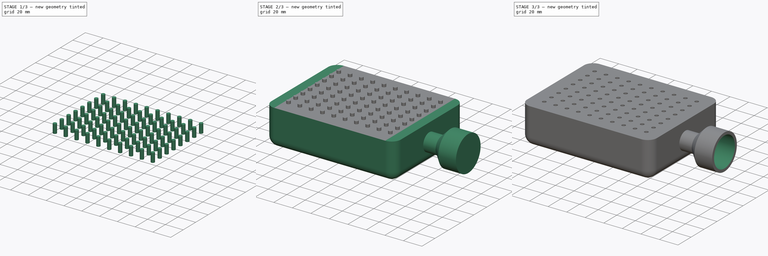
[diagram: build sequence overview — one tinted view per stage of 3, left to right]
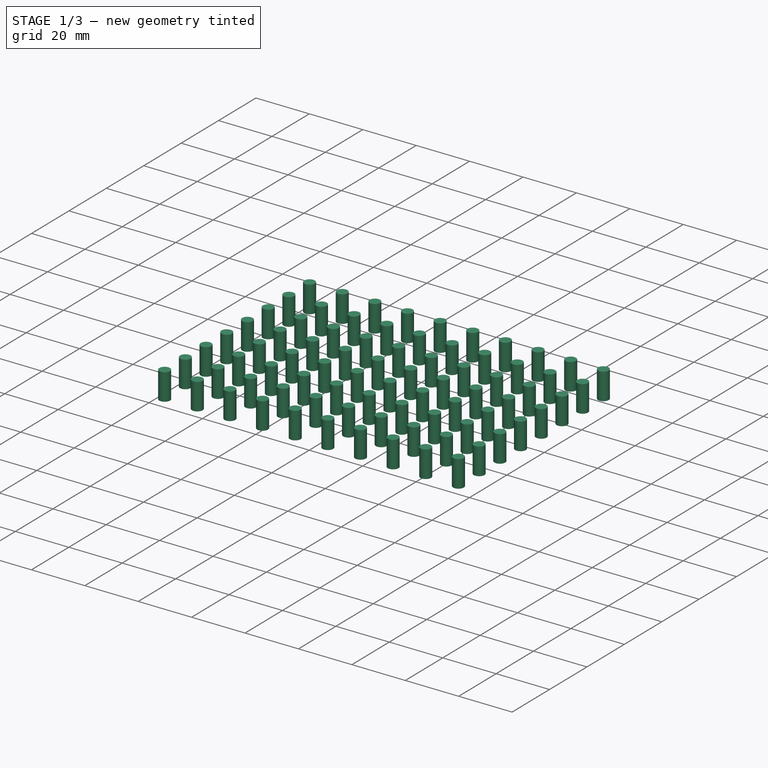
[diagram: stage 1 of 3 — iso view after this stage's code; geometry added in this stage tinted green]
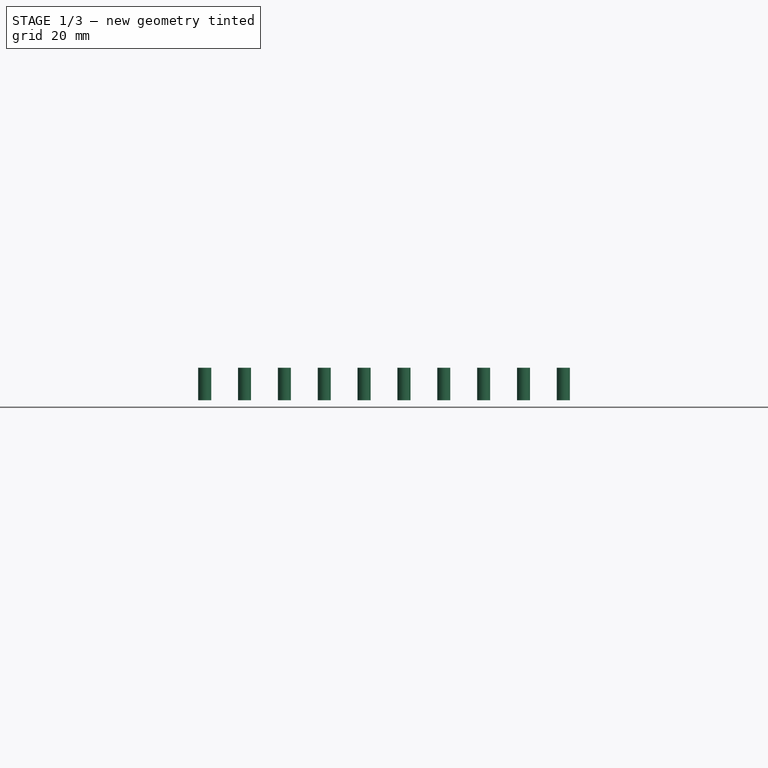
[diagram: stage 1 of 3 — front view after this stage's code; geometry added in this stage tinted green]
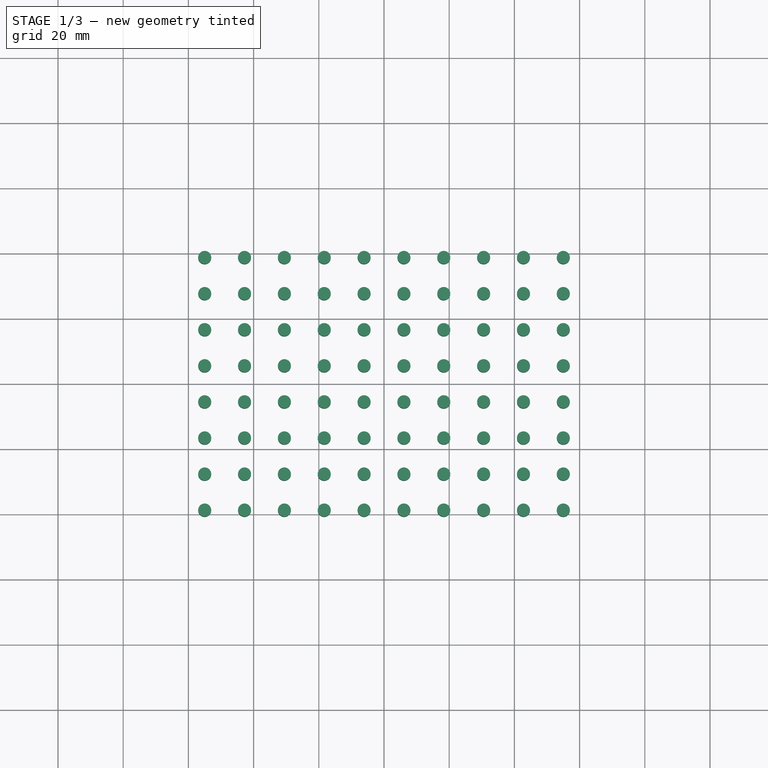
[diagram: stage 1 of 3 — top view after this stage's code; geometry added in this stage tinted green]
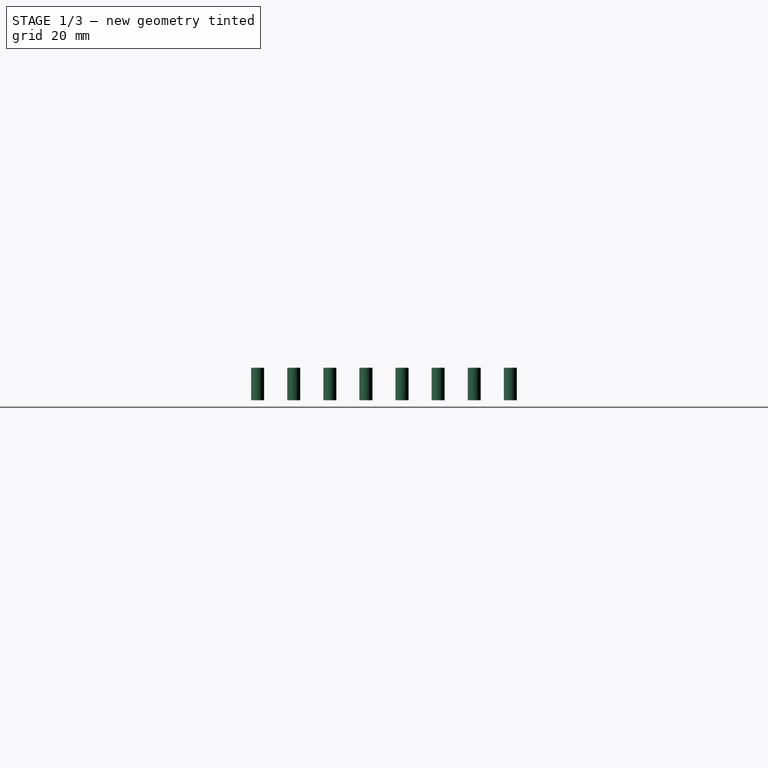
[diagram: stage 1 of 3 — right view after this stage's code; geometry added in this stage tinted green]
FCSTD DOCUMENT  (FreeCAD 0.17R13541 (Git))
Label: Simple Vaccum thermoforming
License: All rights reserved
LicenseURL: http://en.wikipedia.org/wiki/All_rights_reserved
objects: Sketcher::SketchObject×3, PartDesign::Pad×2, PartDesign::Body×2, Spreadsheet::Sheet×1, PartDesign::Line×1, PartDesign::Revolution×1, PartDesign::Fillet×1, PartDesign::Thickness×1, Part::FeaturePython×1, Part::Cut×1, App::Part×1
note: 16 computed .brp shape members not serialized (recipe doc carries the construction recipe); baked Part::Feature solids carry a one-line shape summary decoded from their .brp

FEATURE [PartDesign::Body] Body001
  Group = -> [Sketch,Pad,Sketch001,DatumLine,Revolution,Fillet,Thickness]
  Origin = -> Origin003
  Tip = -> Thickness
FEATURE [Sketcher::SketchObject] Sketch002
  MapMode = 5
  Support = -> [XY_Plane]
  expr: Constraints[8] = Spreadsheet.holesdiam
  expr: Constraints[7] = Spreadsheet.long / 2 - 15
  expr: Constraints[6] = Spreadsheet.width / 2 - 15
  sketch-geometry (3):
    g0: Circle CenterX=-55 CenterY=38.75 CenterZ=0 NormalX=0 NormalY=0 NormalZ=1 AngleXU=0 Radius=2
    g1: LineSegment [constr] StartX=-55 StartY=0 StartZ=0 EndX=-55 EndY=38.75 EndZ=0
    g2: LineSegment [constr] StartX=-55 StartY=38.75 StartZ=0 EndX=0 EndY=38.75 EndZ=0
  constraints (9):
    c: PointOnObject(g1,g-1)
    c: Coincident(g1,g0)
    c: Coincident(g1,g2)
    c: PointOnObject(g2,g-2)
    c: Horizontal(g2)
    c: Vertical(g1)
    c: DistanceY(g1,g1) = 38.75
    c: DistanceX(g2,g2) = 55
    c: Radius(g0) = 2
FEATURE [PartDesign::Pad] Pad001
  Length = 10
  Length2 = 100
  Midplane = true
  Profile = -> Sketch002
  Refine = true
  Type = 0
FEATURE [PartDesign::Body] Body
  Group = -> [Sketch002,Pad001]
  Origin = -> Origin
  Placement = pos=(0,0,38.1) rot=(0,0,1;0rad)
  Tip = -> Pad001
  expr: Placement.Base.z = Spreadsheet.diametro
FEATURE [Part::FeaturePython] Array  # Draft array (typed FeaturePython)
  Angle = 360
  ArrayType = 0
  Axis = (0,0,1)
  Base = -> Body
  Center = (0,0,0)
  Fuse = false
  IntervalAxis = (0,0,0)
  IntervalX = (12.2222,0,0)
  IntervalY = (0,-11.0714,0)
  IntervalZ = (0,0,0)
  NumberPolar = 1
  NumberX = 10
  NumberY = 8
  NumberZ = 1
  expr: IntervalX.y = 0
  expr: IntervalX.x = (Spreadsheet.long - 30) / (Spreadsheet.holesx - 1)
  expr: NumberY = Spreadsheet.holesy
  expr: IntervalY.y = -(Spreadsheet.width - 30) / (Spreadsheet.holesy - 1)
  expr: NumberX = Spreadsheet.holesx
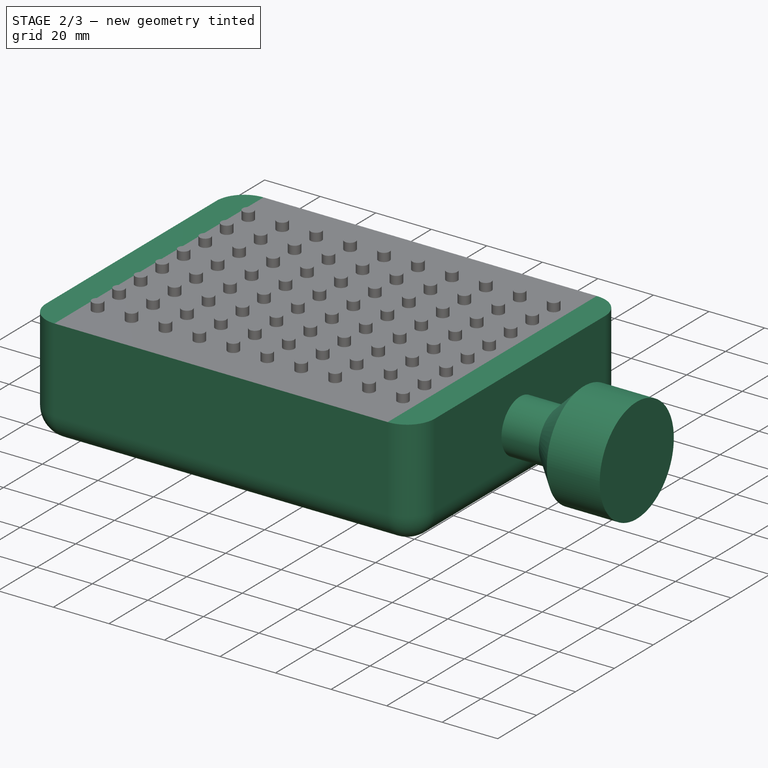
[diagram: stage 2 of 3 — iso view after this stage's code; geometry added in this stage tinted green]
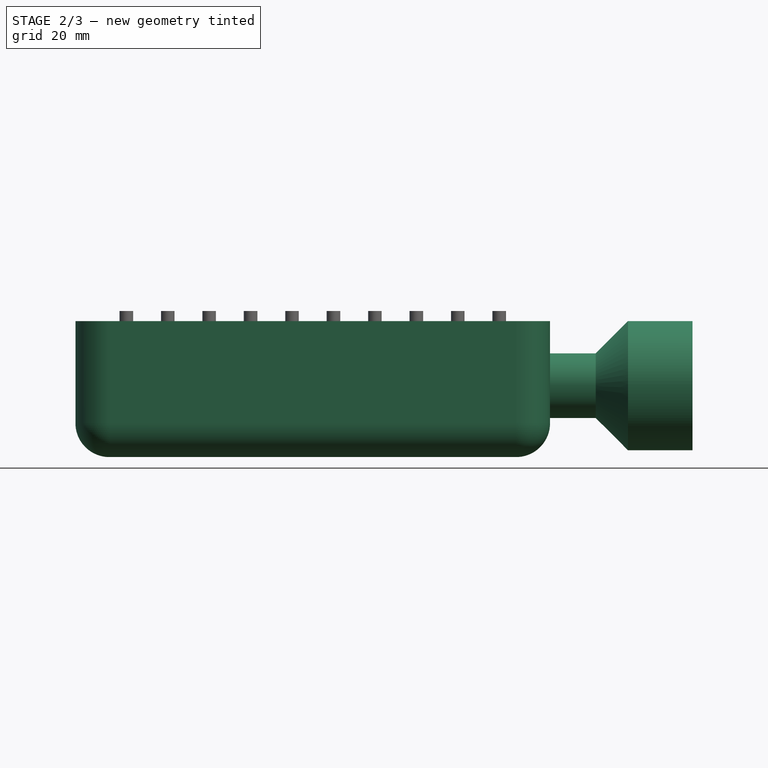
[diagram: stage 2 of 3 — front view after this stage's code; geometry added in this stage tinted green]
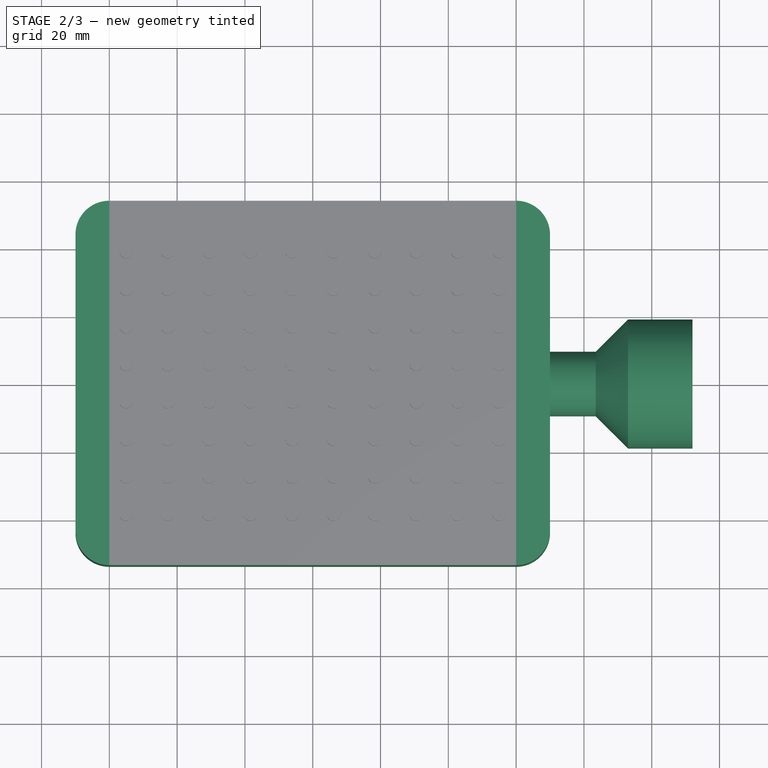
[diagram: stage 2 of 3 — top view after this stage's code; geometry added in this stage tinted green]
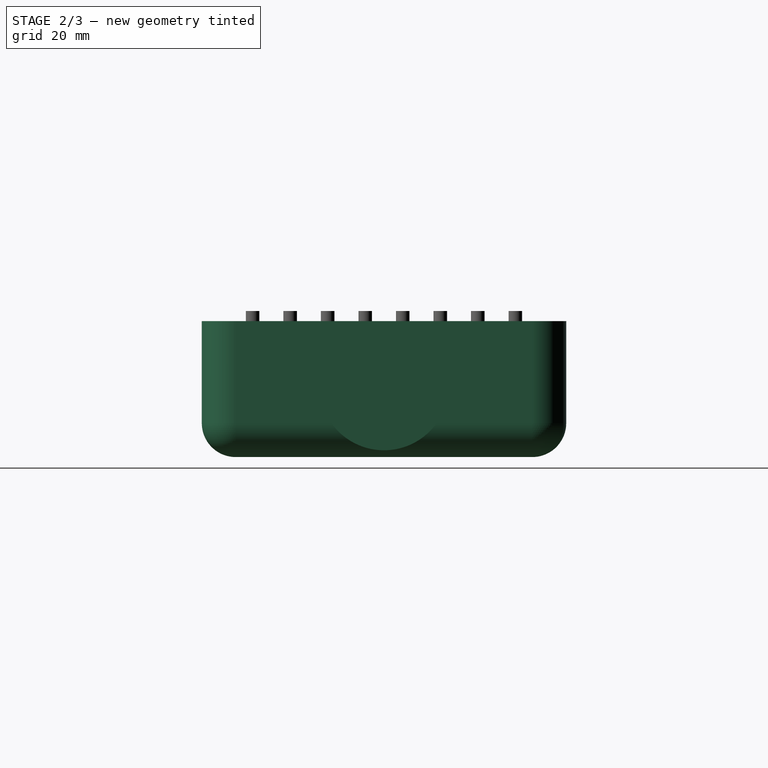
[diagram: stage 2 of 3 — right view after this stage's code; geometry added in this stage tinted green]
FEATURE [Spreadsheet::Sheet] Spreadsheet
  cells = A3=Forming area; D3=holes; A4=Long; B4(long)==280 / 2; D4(holesx)=10; A5=Width; B5(width)==215 / 2; D5(holesy)=8; A7=house diameter; B7(diametro)=38.100000000000001; C7=diameter; D7(holesdiam)=2
FEATURE [Sketcher::SketchObject] Sketch
  MapMode = 5
  Support = -> [XY_Plane003]
  expr: Constraints[10] = Spreadsheet.long
  expr: Constraints[9] = Spreadsheet.width
  sketch-geometry (4):
    g0: LineSegment StartX=-70 StartY=53.75 StartZ=0 EndX=70 EndY=53.75 EndZ=0
    g1: LineSegment StartX=70 StartY=53.75 StartZ=0 EndX=70 EndY=-53.75 EndZ=0
    g2: LineSegment StartX=70 StartY=-53.75 StartZ=0 EndX=-70 EndY=-53.75 EndZ=0
    g3: LineSegment StartX=-70 StartY=-53.75 StartZ=0 EndX=-70 EndY=53.75 EndZ=0
  constraints (11):
    c: Coincident(g0,g1)
    c: Coincident(g1,g2)
    c: Coincident(g2,g3)
    c: Coincident(g3,g0)
    c: Horizontal(g0)
    c: Horizontal(g2)
    c: Vertical(g1)
    c: Vertical(g3)
    c: Symmetric(g1,g0,g-1)
    c: DistanceY(g3,g3) = 107.5
    c: DistanceX(g0,g0) = 140
FEATURE [PartDesign::Pad] Pad
  Length = 40.1
  Length2 = 100
  Profile = -> Sketch
  Refine = true
  Type = 0
  expr: Length = Spreadsheet.diametro + 2
FEATURE [Sketcher::SketchObject] Sketch001
  ExternalGeometry = -> [Pad]
  MapMode = 5
  Placement = pos=(0,0,0) rot=(1,0,0;1.5708rad)
  Support = -> [XZ_Plane003]
  expr: Constraints[17] = Spreadsheet.diametro / 4
  expr: Constraints[16] = Spreadsheet.diametro / 2 + 2
  expr: Constraints[11] = Spreadsheet.diametro / 2
  sketch-geometry (6):
    g0: LineSegment StartX=70 StartY=30.575 StartZ=0 EndX=70 EndY=21.05 EndZ=0
    g1: LineSegment StartX=70 StartY=21.05 StartZ=0 EndX=112.045 EndY=21.05 EndZ=0
    g2: LineSegment StartX=112.045 StartY=21.05 StartZ=0 EndX=112.045 EndY=40.1 EndZ=0
    g3: LineSegment StartX=112.045 StartY=40.1 StartZ=0 EndX=92.9954 EndY=40.1 EndZ=0
    g4: LineSegment StartX=92.9954 StartY=40.1 StartZ=0 EndX=83.4704 EndY=30.575 EndZ=0
    g5: LineSegment StartX=83.4704 StartY=30.575 StartZ=0 EndX=70 EndY=30.575 EndZ=0
  constraints (18):
    c: Vertical(g0)
    c: Coincident(g0,g1)
    c: Horizontal(g1)
    c: Coincident(g1,g2)
    c: Vertical(g2)
    c: Coincident(g2,g3)
    c: Horizontal(g3)
    c: Coincident(g3,g4)
    c: Coincident(g4,g5)
    c: Coincident(g5,g0)
    c: Horizontal(g5)
    c: DistanceY(g2,g2) = 19.05
    c: Equal(g3,g2)
    c: Equal(g4,g5)
    c: PointOnObject(g0,g-3)
    c: Angle(g4,g5) = 2.35619
    c: DistanceY(g-3,g0) = 21.05
    c: DistanceY(g0,g0) = 9.525
FEATURE [PartDesign::Line] DatumLine
  AttacherType = Attacher::AttachEngineLine
  MapMode = 29
  Placement = pos=(0,-2e-12,21.05) rot=(0.57735,0.57735,0.57735;2.0944rad)
  Support = -> [Sketch001]
FEATURE [PartDesign::Revolution] Revolution
  Angle = 360
  Axis = (1,0,0)
  Base = (0,-2e-12,21.05)
  BaseFeature = -> Pad
  Profile = -> Sketch001
  ReferenceAxis = -> DatumLine
  Refine = true
  Reversed = true
FEATURE [PartDesign::Fillet] Fillet
  Base = -> Revolution [Face4,Edge1,Edge2,Edge5,Edge10]
  BaseFeature = -> Revolution
  Radius = 10
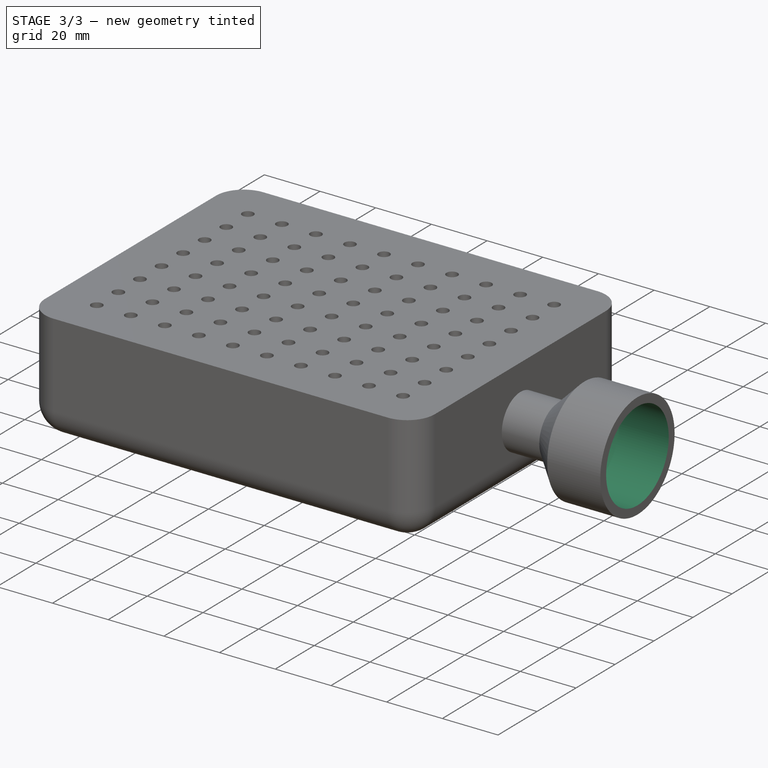
[diagram: stage 3 of 3 — iso view after this stage's code; geometry added in this stage tinted green]
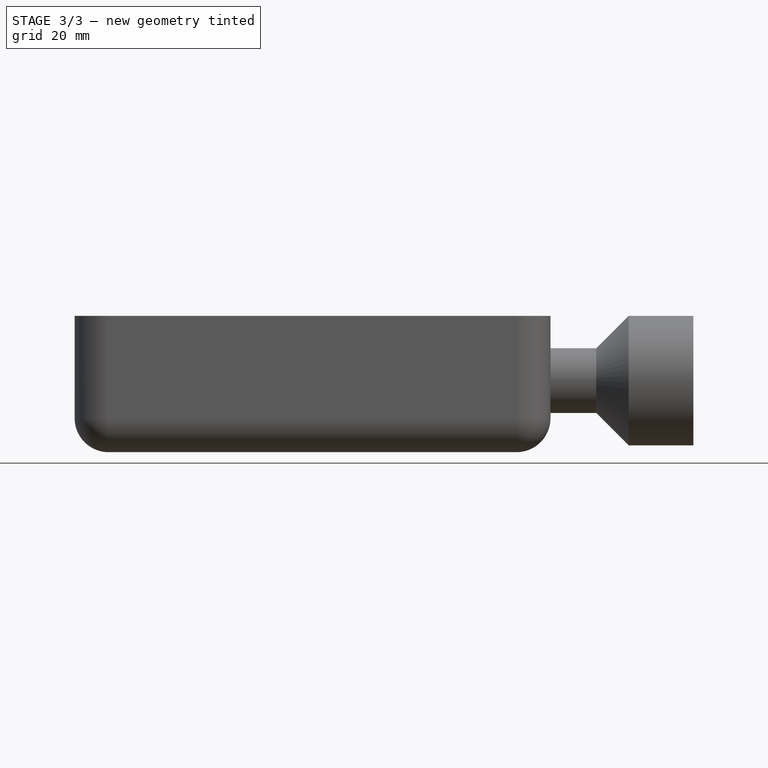
[diagram: stage 3 of 3 — front view after this stage's code; geometry added in this stage tinted green]
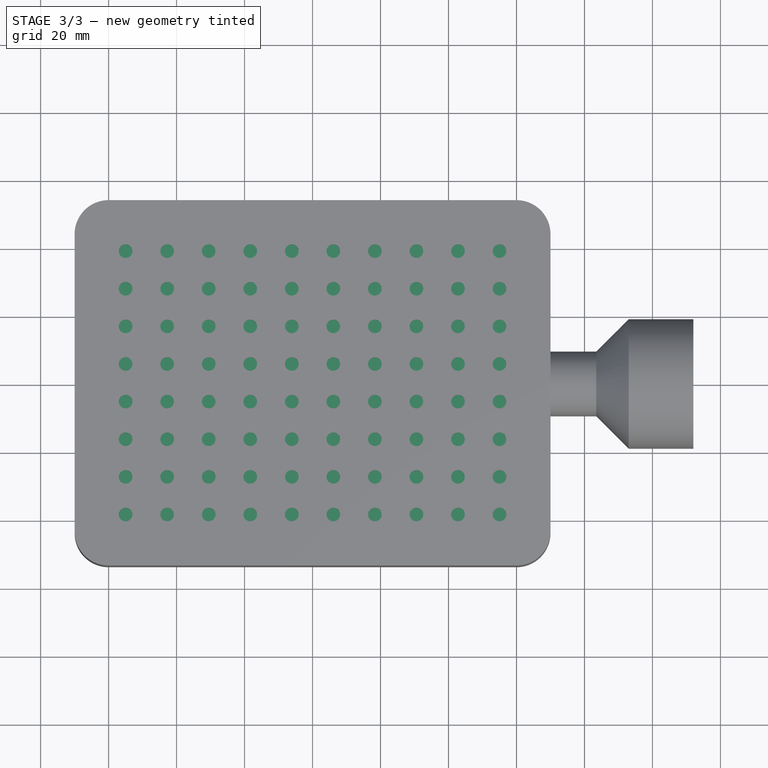
[diagram: stage 3 of 3 — top view after this stage's code; geometry added in this stage tinted green]
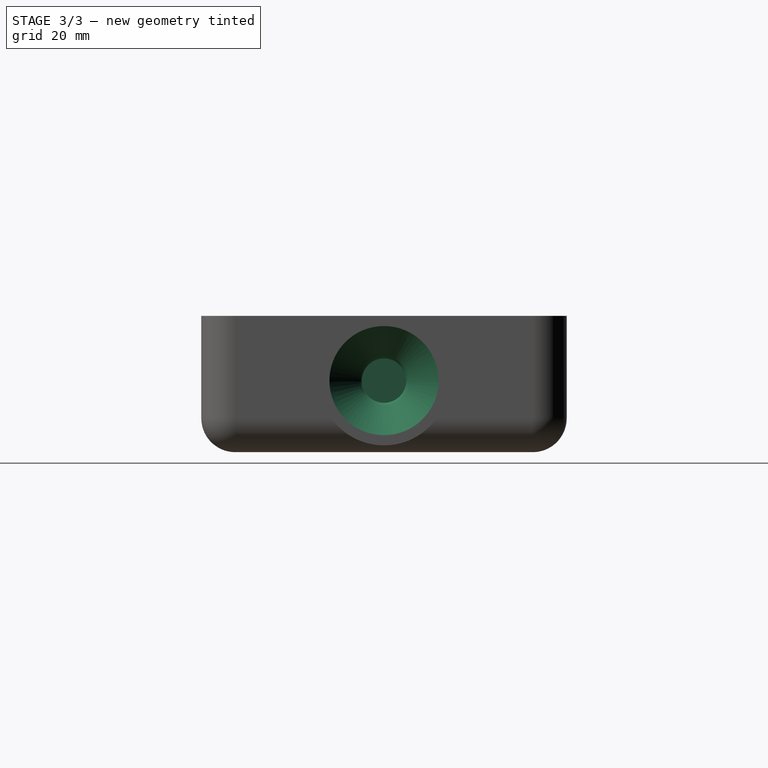
[diagram: stage 3 of 3 — right view after this stage's code; geometry added in this stage tinted green]
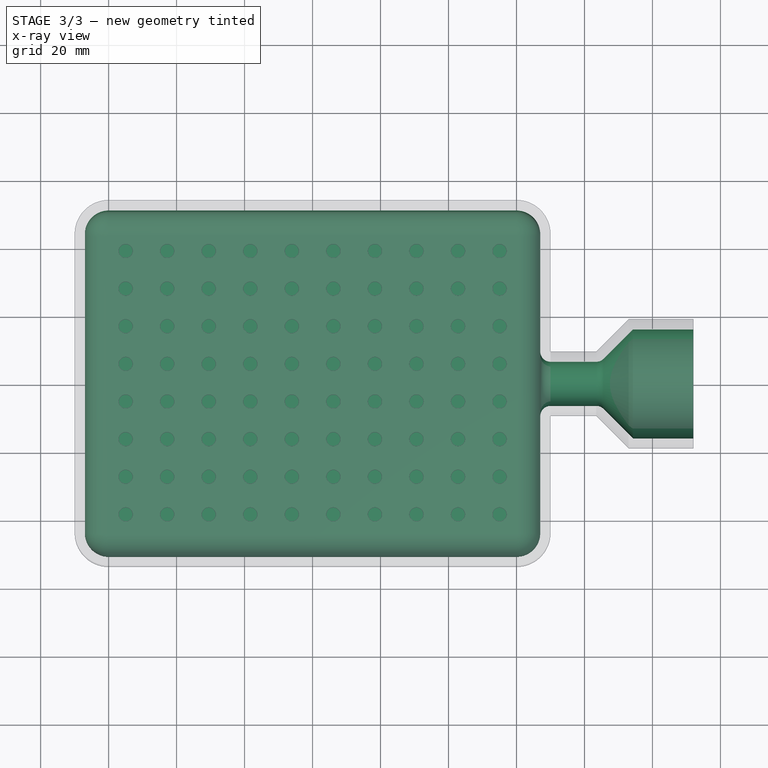
[diagram: stage 3 of 3 — x-ray composite at the top view; earlier geometry ghosted, this stage's added geometry solid]
FEATURE [PartDesign::Thickness] Thickness
  Base = -> Fillet [Face22]
  BaseFeature = -> Fillet
  Join = 0
  Mode = 0
  Reversed = true
  Value = 3
FEATURE [Part::Cut] Cut
  Base = -> Body001
  Refine = true
  Tool = -> Array
FEATURE [App::Part] Part001  label="Base"
  Group = -> [Body001,Array,Body,Cut]
  License = CC BY 3.0
  LicenseURL = http://creativecommons.org/licenses/by/3.0/
  Origin = -> Origin002
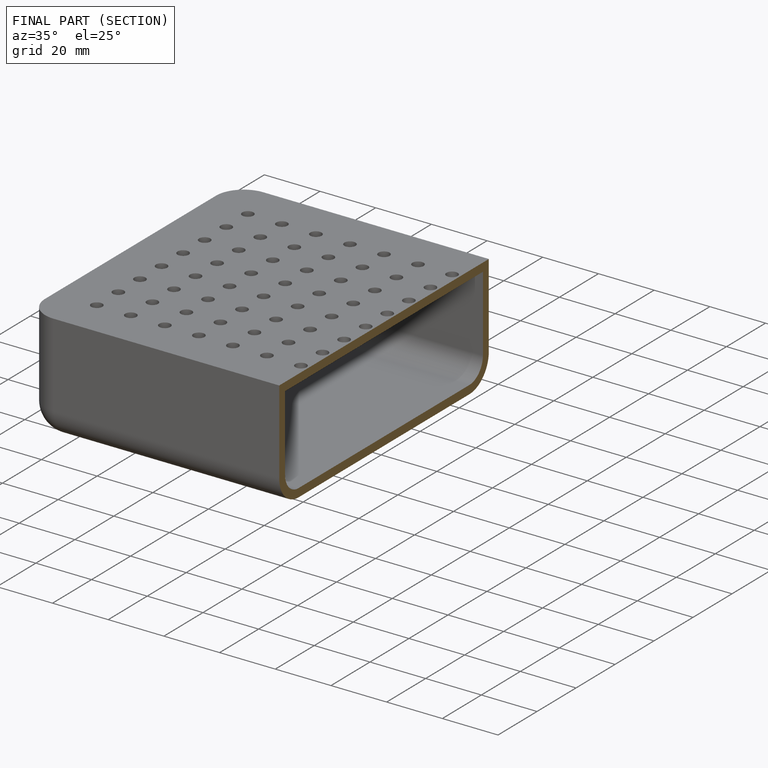
[diagram: finished part — half-section view (interior)]
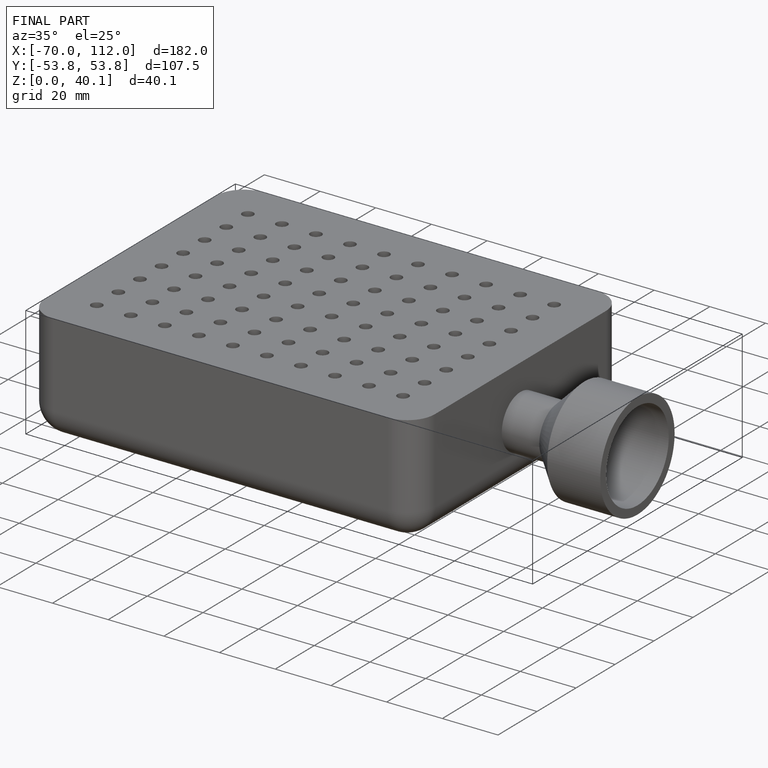
[diagram: finished part — iso view with bounding-box wireframe]
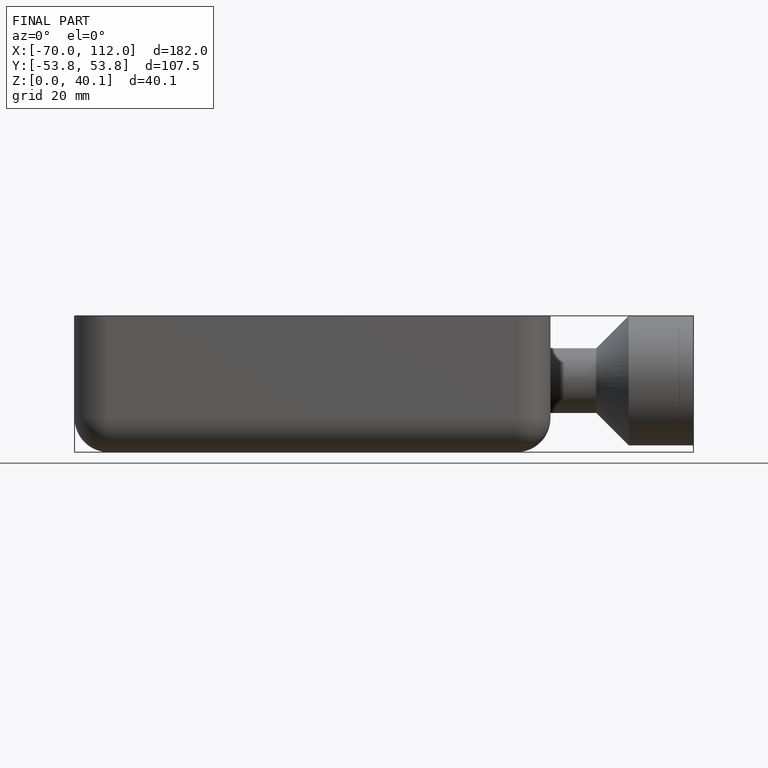
[diagram: finished part — front view with bounding-box wireframe]
